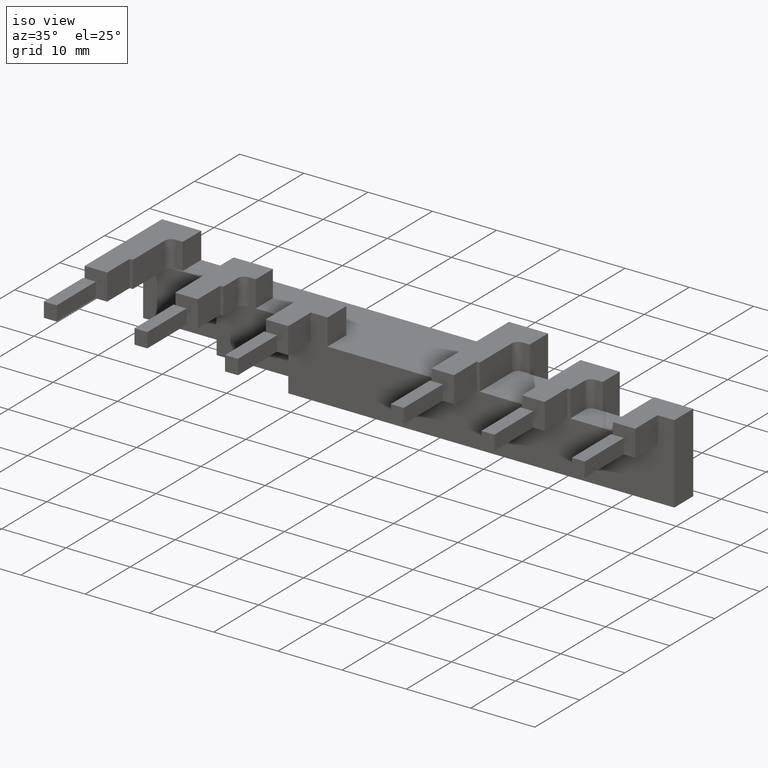
[diagram: clean part render]
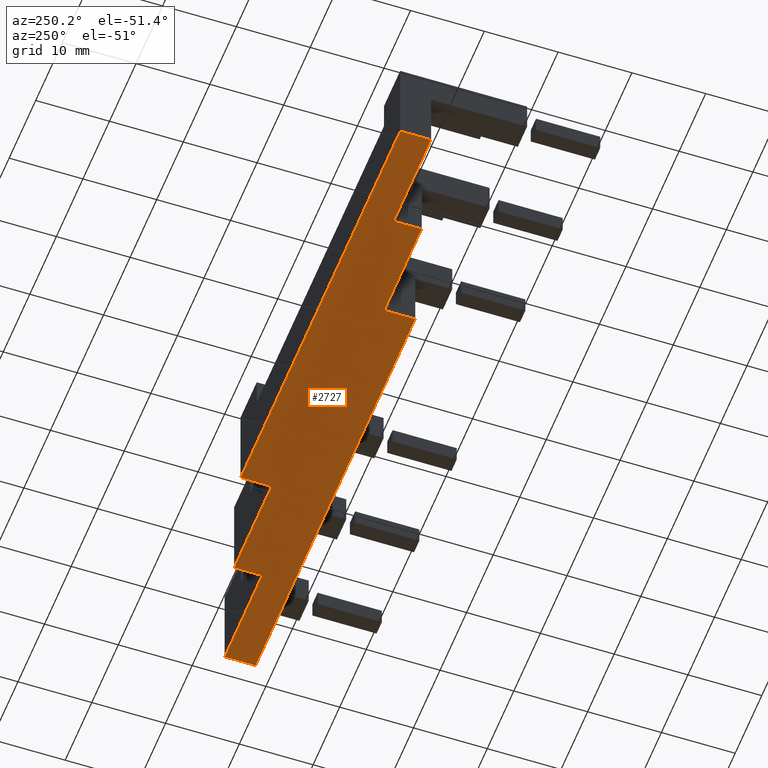
[diagram: tour spotlight — one face highlighted and labeled with its STEP entity id]
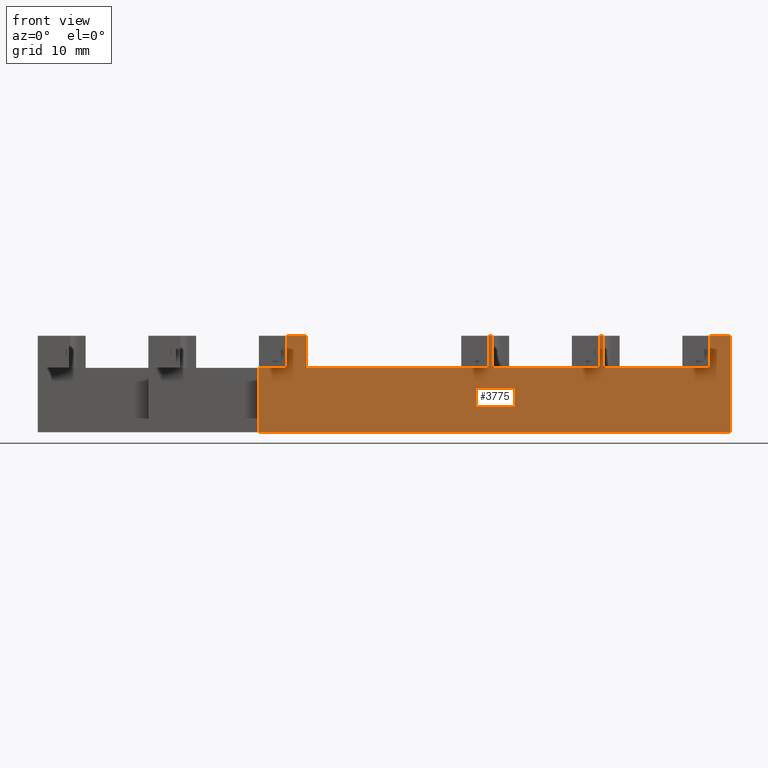
[diagram: tour spotlight — one face highlighted and labeled with its STEP entity id]
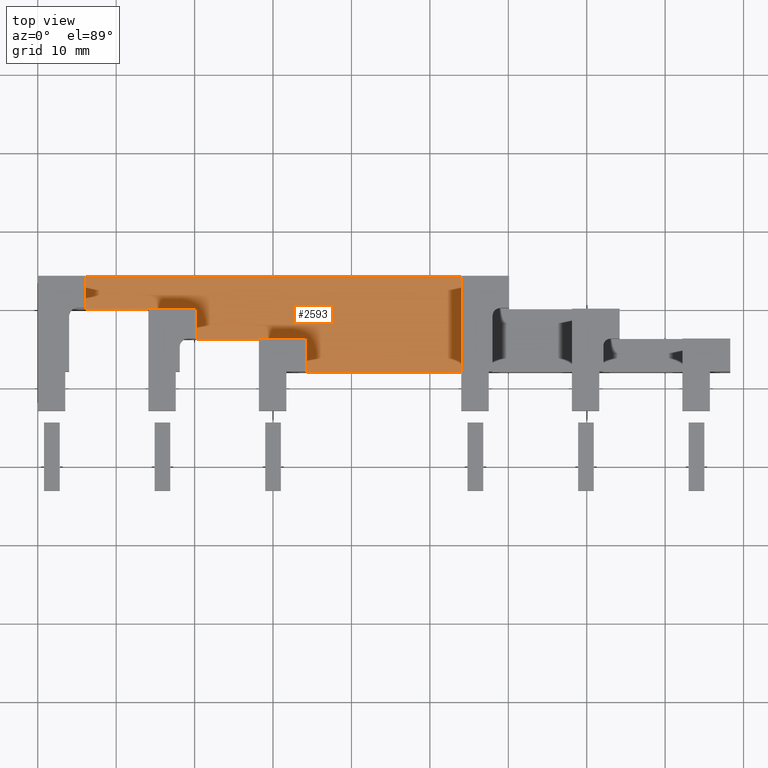
[diagram: tour spotlight — one face highlighted and labeled with its STEP entity id]
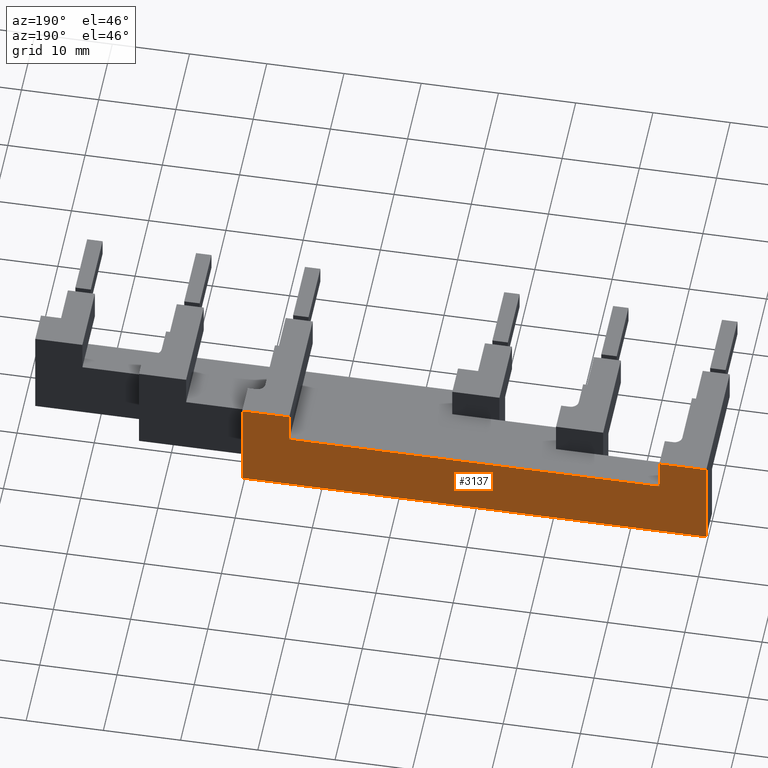
[diagram: tour spotlight — one face highlighted and labeled with its STEP entity id]
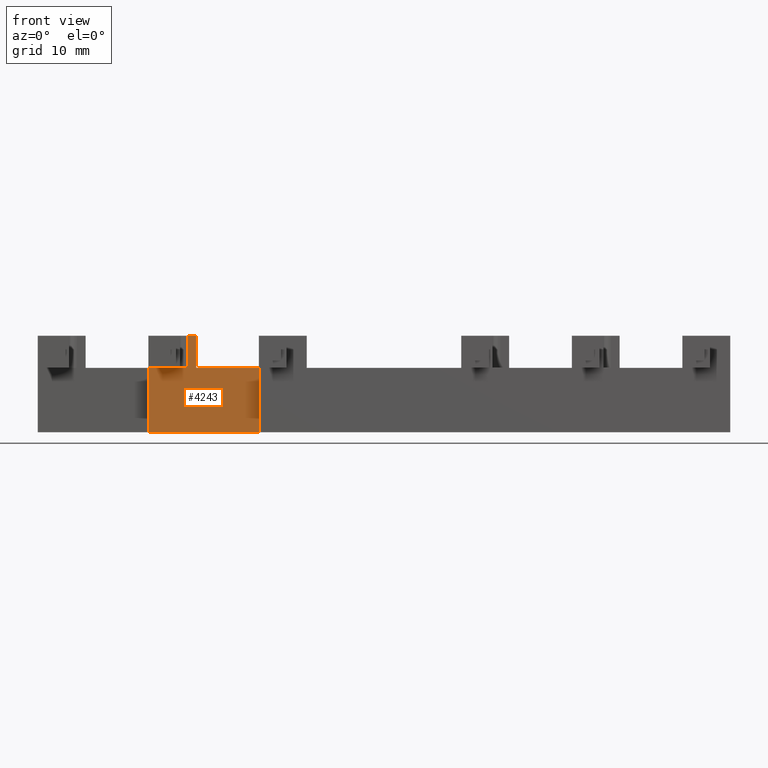
[diagram: tour spotlight — one face highlighted and labeled with its STEP entity id]
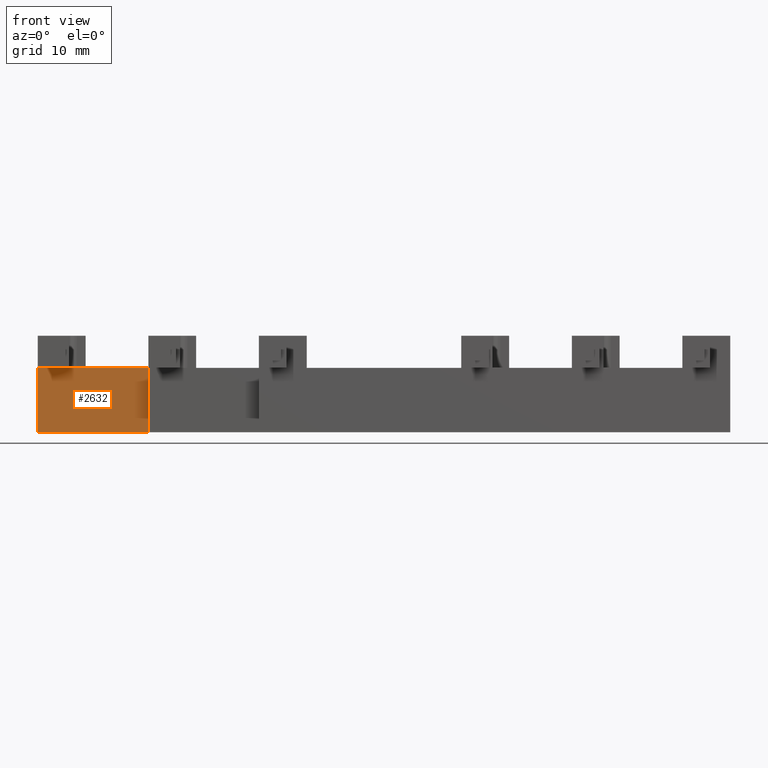
[diagram: tour spotlight — one face highlighted and labeled with its STEP entity id]
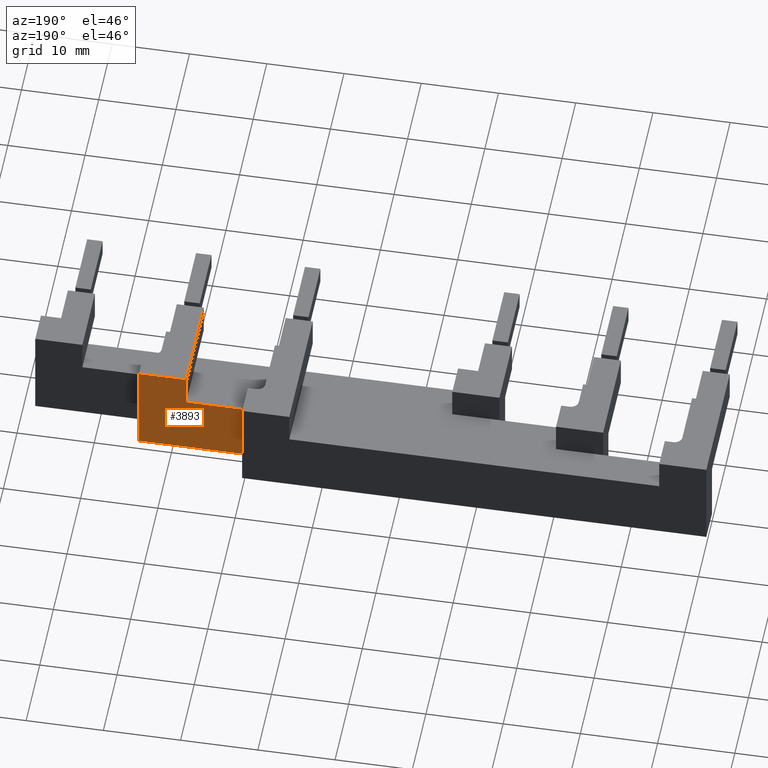
[diagram: tour spotlight — one face highlighted and labeled with its STEP entity id]
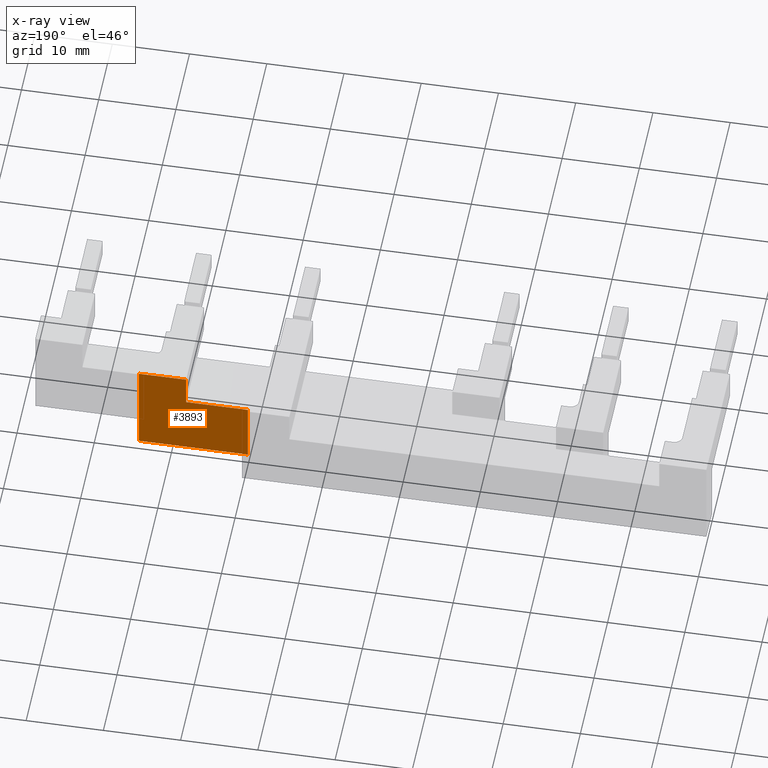
[diagram: x-ray of the same camera — body ghosted, this tour face saturated]
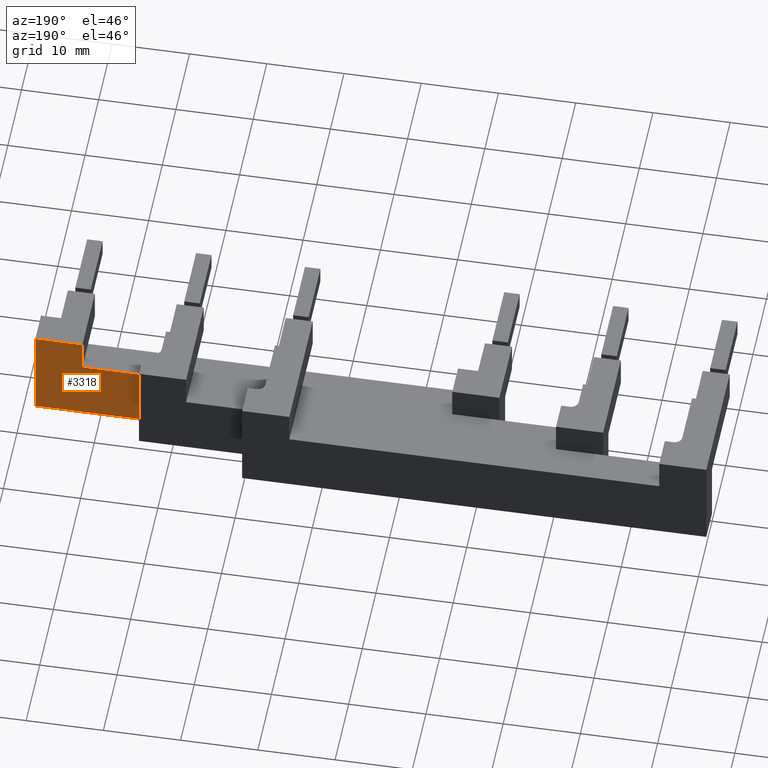
[diagram: tour spotlight — one face highlighted and labeled with its STEP entity id]
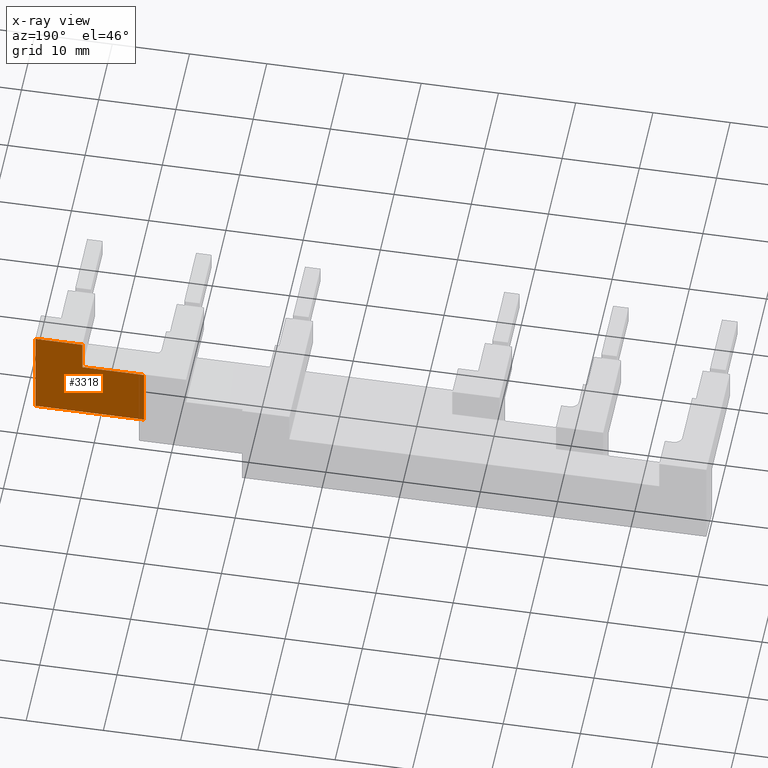
[diagram: x-ray of the same camera — body ghosted, this tour face saturated]
A machine part: a face-by-face anatomy tour. The part has 97 B-rep faces; the first image is the clean iso view, then the 8 largest visible faces are spotlighted one at a time (largest first), each with its STEP entity span.

Face 1 — auxiliary view, entity #2727. In plain terms, the highlighted planar face has unit normal (0, 0, 1).
Definition (entity closure, byte-faithful):
#2601=CARTESIAN_POINT('',(-1.776357E-015,-1.421085E-014,95.799999999992238));
#2602=VERTEX_POINT('',#2601);
#2609=CARTESIAN_POINT('',(14.099999999999682,2.842171E-013,95.79999999999194));
#2610=VERTEX_POINT('',#2609);
#2611=CARTESIAN_POINT('',(14.09999999999971,2.835540E-013,95.799999999991954));
#2612=DIRECTION('',(-1.0,0.0,0.0));
#2613=VECTOR('',#2612,14.09999999999971);
#2614=LINE('',#2611,#2613);
#2615=EDGE_CURVE('',#2610,#2602,#2614,.T.);
#2633=CARTESIAN_POINT('',(-154.95000000000024,2.10000000000062,95.799999999995563));
#2634=DIRECTION('',(0.0,0.0,1.0));
#2635=DIRECTION('',(1.0,0.0,0.0));
#2636=AXIS2_PLACEMENT_3D('',#2633,#2634,#2635);
#2637=PLANE('',#2636);
#2638=ORIENTED_EDGE('',*,*,#2615,.T.);
#2639=CARTESIAN_POINT('',(-9.193903E-014,4.200000000007734,95.799999999992224));
#2640=VERTEX_POINT('',#2639);
#2641=CARTESIAN_POINT('',(-1.165734E-016,-2.842171E-014,95.799999999992224));
#2642=DIRECTION('',(0.0,1.0,0.0));
#2643=VECTOR('',#2642,4.200000000007763);
#2644=LINE('',#2641,#2643);
#2645=EDGE_CURVE('',#2602,#2640,#2644,.T.);
#2646=ORIENTED_EDGE('',*,*,#2645,.T.);
#2647=CARTESIAN_POINT('',(60.099999999999511,4.200000000008999,95.799999999990945));
#2648=VERTEX_POINT('',#2647);
#2649=CARTESIAN_POINT('',(-8.526513E-014,4.200000000007726,95.799999999992252));
#2650=DIRECTION('',(1.0,0.0,0.0));
#2651=VECTOR('',#2650,60.099999999999596);
#2652=LINE('',#2649,#2651);
#2653=EDGE_CURVE('',#2640,#2648,#2652,.T.);
#2654=ORIENTED_EDGE('',*,*,#2653,.T.);
#2655=CARTESIAN_POINT('',(60.099999999999596,-2.842171E-014,95.799999999990959));
#2656=VERTEX_POINT('',#2655);
#2657=CARTESIAN_POINT('',(60.099999999999525,4.200000000009,95.799999999990973));
#2658=DIRECTION('',(0.0,-1.0,0.0));
#2659=VECTOR('',#2658,4.200000000009014);
#2660=LINE('',#2657,#2659);
#2661=EDGE_CURVE('',#2648,#2656,#2660,.T.);
#2662=ORIENTED_EDGE('',*,*,#2661,.T.);
#2663=CARTESIAN_POINT('',(74.199999999999747,2.700062E-013,95.799999999990661));
#2664=VERTEX_POINT('',#2663);
#2665=CARTESIAN_POINT('',(60.099999999999596,-2.246506E-014,95.799999999990945));
#2666=DIRECTION('',(1.0,0.0,0.0));
#2667=VECTOR('',#2666,14.100000000000136);
#2668=LINE('',#2665,#2667);
#2669=EDGE_CURVE('',#2656,#2664,#2668,.T.);
#2670=ORIENTED_EDGE('',*,*,#2669,.T.);
#2671=CARTESIAN_POINT('',(74.199999999999775,-3.799999999998634,95.799999999990661));
#2672=VERTEX_POINT('',#2671);
#2673=CARTESIAN_POINT('',(74.199999999999719,2.846612E-013,95.799999999990661));
#2674=DIRECTION('',(0.0,-1.0,0.0));
#2675=VECTOR('',#2674,3.799999999998904);
#2676=LINE('',#2673,#2675);
#2677=EDGE_CURVE('',#2664,#2672,#2676,.T.);
#2678=ORIENTED_EDGE('',*,*,#2677,.T.);
#2679=CARTESIAN_POINT('',(88.299999999999727,-3.799999999998321,95.799999999990376));
#2680=VERTEX_POINT('',#2679);
#2681=CARTESIAN_POINT('',(74.19999999999979,-3.799999999998628,95.799999999990646));
#2682=DIRECTION('',(1.0,0.0,0.0));
#2683=VECTOR('',#2682,14.099999999999937);
#2684=LINE('',#2681,#2683);
#2685=EDGE_CURVE('',#2672,#2680,#2684,.T.);
#2686=ORIENTED_EDGE('',*,*,#2685,.T.);
#2687=CARTESIAN_POINT('',(88.299999999999827,-7.999999999990451,95.799999999990376));
#2688=VERTEX_POINT('',#2687);
#2689=CARTESIAN_POINT('',(88.299999999999727,-3.799999999998335,95.799999999990348));
#2690=DIRECTION('',(0.0,-1.0,0.0));
#2691=VECTOR('',#2690,4.199999999992118);
#2692=LINE('',#2689,#2691);
#2693=EDGE_CURVE('',#2680,#2688,#2692,.T.);
#2694=ORIENTED_EDGE('',*,*,#2693,.T.);
#2695=CARTESIAN_POINT('',(28.199999999999772,-7.999999999991703,95.799999999991655));
#2696=VERTEX_POINT('',#2695);
#2697=CARTESIAN_POINT('',(88.299999999999812,-7.999999999990448,95.799999999990362));
#2698=DIRECTION('',(-1.0,0.0,0.0));
#2699=VECTOR('',#2698,60.100000000000044);
#2700=LINE('',#2697,#2699);
#2701=EDGE_CURVE('',#2688,#2696,#2700,.T.);
#2702=ORIENTED_EDGE('',*,*,#2701,.T.);
#2703=CARTESIAN_POINT('',(28.199999999999669,-3.799999999998918,95.799999999991655));
#2704=VERTEX_POINT('',#2703);
#2705=CARTESIAN_POINT('',(28.199999999999761,-7.999999999991688,95.799999999991655));
#2706=DIRECTION('',(0.0,1.0,0.0));
#2707=VECTOR('',#2706,4.199999999992785);
#2708=LINE('',#2705,#2707);
#2709=EDGE_CURVE('',#2696,#2704,#2708,.T.);
#2710=ORIENTED_EDGE('',*,*,#2709,.T.);
#2711=CARTESIAN_POINT('',(14.099999999999763,-3.799999999999216,95.799999999991954));
#2712=VERTEX_POINT('',#2711);
#2713=CARTESIAN_POINT('',(28.199999999999704,-3.799999999998933,95.799999999991655));
#2714=DIRECTION('',(-1.0,0.0,0.0));
#2715=VECTOR('',#2714,14.099999999999937);
#2716=LINE('',#2713,#2715);
#2717=EDGE_CURVE('',#2704,#2712,#2716,.T.);
#2718=ORIENTED_EDGE('',*,*,#2717,.T.);
#2719=CARTESIAN_POINT('',(14.099999999999756,-3.799999999999216,95.79999999999194));
#2720=DIRECTION('',(0.0,1.0,0.0));
#2721=VECTOR('',#2720,3.799999999999487);
#2722=LINE('',#2719,#2721);
#2723=EDGE_CURVE('',#2712,#2610,#2722,.T.);
#2724=ORIENTED_EDGE('',*,*,#2723,.T.);
#2725=EDGE_LOOP('',(#2638,#2646,#2654,#2662,#2670,#2678,#2686,#2694,#2702,#2710,#2718,#2724));
#2726=FACE_OUTER_BOUND('',#2725,.T.);
#2727=ADVANCED_FACE('',(#2726),#2637,.F.);

Face 2 — front view, entity #3775. In plain terms, the highlighted planar face has unit normal (0, -1, 0).
Definition (entity closure, byte-faithful):
#2374=CARTESIAN_POINT('',(68.100000000000051,-7.999999999990878,103.99999999999079));
#2375=VERTEX_POINT('',#2374);
#2415=CARTESIAN_POINT('',(58.000000000000256,-7.999999999990907,103.99999999999099));
#2416=VERTEX_POINT('',#2415);
#2423=CARTESIAN_POINT('',(58.000000000000199,-7.999999999991076,103.99999999999102));
#2424=DIRECTION('',(1.0,0.0,0.0));
#2425=VECTOR('',#2424,10.099999999999795);
#2426=LINE('',#2423,#2425);
#2427=EDGE_CURVE('',#2416,#2375,#2426,.T.);
#2456=CARTESIAN_POINT('',(72.100000000000051,-7.999999999990836,103.99999999999069));
#2457=VERTEX_POINT('',#2456);
#2464=CARTESIAN_POINT('',(82.19999999999996,-7.999999999990566,103.99999999999048));
#2465=VERTEX_POINT('',#2464);
#2466=CARTESIAN_POINT('',(72.099999999999994,-7.999999999990779,103.99999999999071));
#2467=DIRECTION('',(1.0,0.0,0.0));
#2468=VECTOR('',#2467,10.099999999999909);
#2469=LINE('',#2466,#2468);
#2470=EDGE_CURVE('',#2457,#2465,#2469,.T.);
#2520=CARTESIAN_POINT('',(34.299999999999969,-7.999999999999462,103.99999999999153));
#2521=VERTEX_POINT('',#2520);
#2528=CARTESIAN_POINT('',(54.000000000000192,-7.999999999991177,103.9999999999911));
#2529=VERTEX_POINT('',#2528);
#2530=CARTESIAN_POINT('',(34.299999999999926,-7.999999999991573,103.99999999999153));
#2531=DIRECTION('',(1.0,0.0,0.0));
#2532=VECTOR('',#2531,19.700000000000216);
#2533=LINE('',#2530,#2532);
#2534=EDGE_CURVE('',#2521,#2529,#2533,.T.);
#2687=CARTESIAN_POINT('',(88.299999999999827,-7.999999999990451,95.799999999990376));
#2688=VERTEX_POINT('',#2687);
#2695=CARTESIAN_POINT('',(28.199999999999772,-7.999999999991703,95.799999999991655));
#2696=VERTEX_POINT('',#2695);
#2697=CARTESIAN_POINT('',(88.299999999999812,-7.999999999990448,95.799999999990362));
#2698=DIRECTION('',(-1.0,0.0,0.0));
#2699=VECTOR('',#2698,60.100000000000044);
#2700=LINE('',#2697,#2699);
#2701=EDGE_CURVE('',#2688,#2696,#2700,.T.);
#3014=CARTESIAN_POINT('',(57.500000000000348,-7.999999999991148,108.099999999991));
#3015=VERTEX_POINT('',#3014);
#3032=CARTESIAN_POINT('',(57.500000000000256,-7.999999999991148,103.99999999999102));
#3033=VERTEX_POINT('',#3032);
#3040=CARTESIAN_POINT('',(57.500000000000256,-7.999999999991148,103.99999999999102));
#3041=DIRECTION('',(0.0,0.0,1.0));
#3042=VECTOR('',#3041,4.099999999999994);
#3043=LINE('',#3040,#3042);
#3044=EDGE_CURVE('',#3033,#3015,#3043,.T.);
#3223=CARTESIAN_POINT('',(58.000000000000341,-7.999999999990907,108.099999999991));
#3224=VERTEX_POINT('',#3223);
#3231=CARTESIAN_POINT('',(58.000000000000256,-7.999999999990907,103.99999999999099));
#3232=DIRECTION('',(0.0,0.0,1.0));
#3233=VECTOR('',#3232,4.099999999999994);
#3234=LINE('',#3231,#3233);
#3235=EDGE_CURVE('',#2416,#3224,#3234,.T.);
#3247=CARTESIAN_POINT('',(58.000000000000348,-7.99999999999091,108.09999999999098));
#3248=DIRECTION('',(-1.0,-4.760636E-013,2.842171E-014));
#3249=VECTOR('',#3248,0.5);
#3250=LINE('',#3247,#3249);
#3251=EDGE_CURVE('',#3224,#3015,#3250,.T.);
#3269=CARTESIAN_POINT('',(54.000000000000185,-7.999999999991154,103.9999999999911));
#3270=DIRECTION('',(1.0,0.0,0.0));
#3271=VECTOR('',#3270,3.500000000000064);
#3272=LINE('',#3269,#3271);
#3273=EDGE_CURVE('',#2529,#3033,#3272,.T.);
#3324=CARTESIAN_POINT('',(88.300000000000097,-7.999999999998311,108.09999999999036));
#3325=VERTEX_POINT('',#3324);
#3332=CARTESIAN_POINT('',(88.300000000000068,-7.999999999990438,108.09999999999036));
#3333=DIRECTION('',(0.0,0.0,-1.0));
#3334=VECTOR('',#3333,12.300000000000011);
#3335=LINE('',#3332,#3334);
#3336=EDGE_CURVE('',#3325,#2688,#3335,.T.);
#3348=CARTESIAN_POINT('',(85.700000000000188,-7.999999999998382,108.09999999999043));
#3349=VERTEX_POINT('',#3348);
#3366=CARTESIAN_POINT('',(85.700000000000074,-7.999999999998382,103.99999999999041));
#3367=VERTEX_POINT('',#3366);
#3374=CARTESIAN_POINT('',(85.700000000000074,-7.999999999998382,103.99999999999041));
#3375=DIRECTION('',(0.0,0.0,1.0));
#3376=VECTOR('',#3375,4.100000000000009);
#3377=LINE('',#3374,#3376);
#3378=EDGE_CURVE('',#3367,#3349,#3377,.T.);
#3446=CARTESIAN_POINT('',(88.300000000000097,-7.999999999998311,108.09999999999036));
#3447=DIRECTION('',(-1.0,0.0,0.0));
#3448=VECTOR('',#3447,2.599999999999909);
#3449=LINE('',#3446,#3448);
#3450=EDGE_CURVE('',#3325,#3349,#3449,.T.);
#3461=CARTESIAN_POINT('',(82.199999999999946,-7.999999999990562,103.99999999999051));
#3462=DIRECTION('',(1.0,0.0,0.0));
#3463=VECTOR('',#3462,3.500000000000114);
#3464=LINE('',#3461,#3463);
#3465=EDGE_CURVE('',#2465,#3367,#3464,.T.);
#3509=CARTESIAN_POINT('',(34.300000000000068,-7.999999999999462,108.09999999999151));
#3510=VERTEX_POINT('',#3509);
#3517=CARTESIAN_POINT('',(34.299999999999969,-7.999999999999462,103.99999999999153));
#3518=DIRECTION('',(0.0,0.0,1.0));
#3519=VECTOR('',#3518,4.100000000000009);
#3520=LINE('',#3517,#3519);
#3521=EDGE_CURVE('',#2521,#3510,#3520,.T.);
#3533=CARTESIAN_POINT('',(31.700000000000138,-7.999999999999519,108.09999999999158));
#3534=VERTEX_POINT('',#3533);
#3551=CARTESIAN_POINT('',(31.700000000000053,-7.999999999999504,103.99999999999156));
#3552=VERTEX_POINT('',#3551);
#3559=CARTESIAN_POINT('',(31.700000000000053,-7.999999999999504,103.99999999999156));
#3560=DIRECTION('',(0.0,0.0,1.0));
#3561=VECTOR('',#3560,4.100000000000009);
#3562=LINE('',#3559,#3561);
#3563=EDGE_CURVE('',#3552,#3534,#3562,.T.);
#3618=CARTESIAN_POINT('',(28.199999999999935,-7.999999999991703,103.99999999999167));
#3619=VERTEX_POINT('',#3618);
#3620=CARTESIAN_POINT('',(28.199999999999946,-7.999999999991703,103.99999999999163));
#3621=DIRECTION('',(0.0,0.0,-1.0));
#3622=VECTOR('',#3621,8.199999999999989);
#3623=LINE('',#3620,#3622);
#3624=EDGE_CURVE('',#3619,#2696,#3623,.T.);
#3645=CARTESIAN_POINT('',(34.300000000000068,-7.999999999999462,108.09999999999151));
#3646=DIRECTION('',(-1.0,0.0,0.0));
#3647=VECTOR('',#3646,2.599999999999909);
#3648=LINE('',#3645,#3647);
#3649=EDGE_CURVE('',#3510,#3534,#3648,.T.);
#3660=CARTESIAN_POINT('',(28.199999999999946,-7.999999999991697,103.99999999999166));
#3661=DIRECTION('',(1.0,0.0,0.0));
#3662=VECTOR('',#3661,3.500000000000114);
#3663=LINE('',#3660,#3662);
#3664=EDGE_CURVE('',#3619,#3552,#3663,.T.);
#3709=CARTESIAN_POINT('',(72.100000000000151,-7.99999999999085,108.0999999999907));
#3710=VERTEX_POINT('',#3709);
#3717=CARTESIAN_POINT('',(72.100000000000051,-7.999999999990836,103.99999999999069));
#3718=DIRECTION('',(0.0,0.0,1.0));
#3719=VECTOR('',#3718,4.099999999999994);
#3720=LINE('',#3717,#3719);
#3721=EDGE_CURVE('',#2457,#3710,#3720,.T.);
#3728=CARTESIAN_POINT('',(72.100000000000051,-7.999999999990836,103.99999999999069));
#3729=DIRECTION('',(0.0,-1.0,0.0));
#3730=DIRECTION('',(0.0,0.0,-1.0));
#3731=AXIS2_PLACEMENT_3D('',#3728,#3729,#3730);
#3732=PLANE('',#3731);
#3733=CARTESIAN_POINT('',(71.600000000000378,-7.999999999990864,108.09999999999071));
#3734=VERTEX_POINT('',#3733);
#3735=CARTESIAN_POINT('',(72.100000000000151,-7.999999999990854,108.0999999999907));
#3736=DIRECTION('',(-1.0,0.0,0.0));
#3737=VECTOR('',#3736,0.499999999999773);
#3738=LINE('',#3735,#3737);
#3739=EDGE_CURVE('',#3710,#3734,#3738,.T.);
#3740=ORIENTED_EDGE('',*,*,#3739,.T.);
#3741=CARTESIAN_POINT('',(71.600000000000279,-7.999999999990864,103.99999999999075));
#3742=VERTEX_POINT('',#3741);
#3743=CARTESIAN_POINT('',(71.600000000000279,-7.999999999990864,103.99999999999075));
#3744=DIRECTION('',(0.0,0.0,1.0));
#3745=VECTOR('',#3744,4.099999999999994);
#3746=LINE('',#3743,#3745);
#3747=EDGE_CURVE('',#3742,#3734,#3746,.T.);
#3748=ORIENTED_EDGE('',*,*,#3747,.F.);
#3749=CARTESIAN_POINT('',(68.100000000000051,-7.999999999990864,103.99999999999081));
#3750=DIRECTION('',(1.0,0.0,0.0));
#3751=VECTOR('',#3750,3.500000000000227);
#3752=LINE('',#3749,#3751);
#3753=EDGE_CURVE('',#2375,#3742,#3752,.T.);
#3754=ORIENTED_EDGE('',*,*,#3753,.F.);
#3755=ORIENTED_EDGE('',*,*,#2427,.F.);
#3756=ORIENTED_EDGE('',*,*,#3235,.T.);
#3757=ORIENTED_EDGE('',*,*,#3251,.T.);
#3758=ORIENTED_EDGE('',*,*,#3044,.F.);
#3759=ORIENTED_EDGE('',*,*,#3273,.F.);
#3760=ORIENTED_EDGE('',*,*,#2534,.F.);
#3761=ORIENTED_EDGE('',*,*,#3521,.T.);
#3762=ORIENTED_EDGE('',*,*,#3649,.T.);
#3763=ORIENTED_EDGE('',*,*,#3563,.F.);
#3764=ORIENTED_EDGE('',*,*,#3664,.F.);
#3765=ORIENTED_EDGE('',*,*,#3624,.T.);
#3766=ORIENTED_EDGE('',*,*,#2701,.F.);
#3767=ORIENTED_EDGE('',*,*,#3336,.F.);
#3768=ORIENTED_EDGE('',*,*,#3450,.T.);
#3769=ORIENTED_EDGE('',*,*,#3378,.F.);
#3770=ORIENTED_EDGE('',*,*,#3465,.F.);
#3771=ORIENTED_EDGE('',*,*,#2470,.F.);
#3772=ORIENTED_EDGE('',*,*,#3721,.T.);
#3773=EDGE_LOOP('',(#3740,#3748,#3754,#3755,#3756,#3757,#3758,#3759,#3760,#3761,#3762,#3763,#3764,#3765,#3766,#3767,#3768,#3769,#3770,#3771,#3772));
#3774=FACE_OUTER_BOUND('',#3773,.T.);
#3775=ADVANCED_FACE('',(#3774),#3732,.T.);

Face 3 — top view, entity #2593. In plain terms, the highlighted planar face has unit normal (0, 0, 1).
Definition (entity closure, byte-faithful):
#2489=CARTESIAN_POINT('',(61.050000000000004,2.100000000005153,103.99999999999096));
#2490=DIRECTION('',(0.0,0.0,1.0));
#2491=DIRECTION('',(1.0,0.0,0.0));
#2492=AXIS2_PLACEMENT_3D('',#2489,#2490,#2491);
#2493=PLANE('',#2492);
#2494=CARTESIAN_POINT('',(20.199999999999463,-3.799999999999089,103.99999999999183));
#2495=VERTEX_POINT('',#2494);
#2496=CARTESIAN_POINT('',(20.199999999999836,6.394885E-013,103.99999999999181));
#2497=VERTEX_POINT('',#2496);
#2498=CARTESIAN_POINT('',(20.199999999999463,-3.799999999999089,103.99999999999183));
#2499=DIRECTION('',(0.0,1.0,0.0));
#2500=VECTOR('',#2499,3.799999999999728);
#2501=LINE('',#2498,#2500);
#2502=EDGE_CURVE('',#2495,#2497,#2501,.T.);
#2503=ORIENTED_EDGE('',*,*,#2502,.F.);
#2504=CARTESIAN_POINT('',(28.199999999999861,-3.799999999999572,103.99999999999167));
#2505=VERTEX_POINT('',#2504);
#2506=CARTESIAN_POINT('',(20.19999999999947,-3.799999999999092,103.99999999999184));
#2507=DIRECTION('',(1.0,0.0,0.0));
#2508=VECTOR('',#2507,8.000000000000384);
#2509=LINE('',#2506,#2508);
#2510=EDGE_CURVE('',#2495,#2505,#2509,.T.);
#2511=ORIENTED_EDGE('',*,*,#2510,.T.);
#2512=CARTESIAN_POINT('',(34.299999999999862,-3.799999999999458,103.99999999999153));
#2513=VERTEX_POINT('',#2512);
#2514=CARTESIAN_POINT('',(28.199999999999861,-3.799999999999572,103.99999999999167));
#2515=DIRECTION('',(1.0,0.0,0.0));
#2516=VECTOR('',#2515,6.100000000000023);
#2517=LINE('',#2514,#2516);
#2518=EDGE_CURVE('',#2505,#2513,#2517,.T.);
#2519=ORIENTED_EDGE('',*,*,#2518,.T.);
#2520=CARTESIAN_POINT('',(34.299999999999969,-7.999999999999462,103.99999999999153));
#2521=VERTEX_POINT('',#2520);
#2522=CARTESIAN_POINT('',(34.299999999999862,-3.799999999999458,103.99999999999153));
#2523=DIRECTION('',(0.0,-1.0,0.0));
#2524=VECTOR('',#2523,4.200000000000005);
#2525=LINE('',#2522,#2524);
#2526=EDGE_CURVE('',#2513,#2521,#2525,.T.);
#2527=ORIENTED_EDGE('',*,*,#2526,.T.);
#2528=CARTESIAN_POINT('',(54.000000000000192,-7.999999999991177,103.9999999999911));
#2529=VERTEX_POINT('',#2528);
#2530=CARTESIAN_POINT('',(34.299999999999926,-7.999999999991573,103.99999999999153));
#2531=DIRECTION('',(1.0,0.0,0.0));
#2532=VECTOR('',#2531,19.700000000000216);
#2533=LINE('',#2530,#2532);
#2534=EDGE_CURVE('',#2521,#2529,#2533,.T.);
#2535=ORIENTED_EDGE('',*,*,#2534,.T.);
#2536=CARTESIAN_POINT('',(54.000000000000121,4.200000000008886,103.9999999999911));
#2537=VERTEX_POINT('',#2536);
#2538=CARTESIAN_POINT('',(54.000000000000121,4.200000000008886,103.9999999999911));
#2539=DIRECTION('',(0.0,-1.0,0.0));
#2540=VECTOR('',#2539,12.200000000000049);
#2541=LINE('',#2538,#2540);
#2542=EDGE_CURVE('',#2537,#2529,#2541,.T.);
#2543=ORIENTED_EDGE('',*,*,#2542,.F.);
#2544=CARTESIAN_POINT('',(6.099999999999754,4.200000000007862,103.99999999999211));
#2545=VERTEX_POINT('',#2544);
#2546=CARTESIAN_POINT('',(54.000000000000114,4.200000000008894,103.99999999999109));
#2547=DIRECTION('',(-1.0,0.0,0.0));
#2548=VECTOR('',#2547,47.900000000000347);
#2549=LINE('',#2546,#2548);
#2550=EDGE_CURVE('',#2537,#2545,#2549,.T.);
#2551=ORIENTED_EDGE('',*,*,#2550,.T.);
#2552=CARTESIAN_POINT('',(6.099999999999853,0.099999999999568,103.99999999999213));
#2553=VERTEX_POINT('',#2552);
#2554=CARTESIAN_POINT('',(6.099999999999853,0.099999999999568,103.99999999999213));
#2555=DIRECTION('',(0.0,1.0,0.0));
#2556=VECTOR('',#2555,4.100000000008309);
#2557=LINE('',#2554,#2556);
#2558=EDGE_CURVE('',#2553,#2545,#2557,.T.);
#2559=ORIENTED_EDGE('',*,*,#2558,.F.);
#2560=CARTESIAN_POINT('',(5.000000000000058,0.09999999999954,103.99999999999216));
#2561=VERTEX_POINT('',#2560);
#2562=CARTESIAN_POINT('',(5.000000000000058,0.09999999999954,103.99999999999216));
#2563=DIRECTION('',(1.0,0.0,0.0));
#2564=VECTOR('',#2563,1.099999999999796);
#2565=LINE('',#2562,#2564);
#2566=EDGE_CURVE('',#2561,#2553,#2565,.T.);
#2567=ORIENTED_EDGE('',*,*,#2566,.F.);
#2568=CARTESIAN_POINT('',(4.564110105647121,8.526513E-014,103.99999999999216));
#2569=VERTEX_POINT('',#2568);
#2570=CARTESIAN_POINT('',(5.000000000000079,-0.900000000000461,103.99999999999216));
#2571=DIRECTION('',(-1.068686E-014,1.068686E-014,-1.0));
#2572=DIRECTION('',(-0.707106781186552,0.707106781186543,1.511351E-014));
#2573=AXIS2_PLACEMENT_3D('',#2570,#2571,#2572);
#2574=CIRCLE('',#2573,1.000000000000001);
#2575=EDGE_CURVE('',#2569,#2561,#2574,.T.);
#2576=ORIENTED_EDGE('',*,*,#2575,.F.);
#2577=CARTESIAN_POINT('',(14.099999999999852,2.700062E-013,103.99999999999196));
#2578=VERTEX_POINT('',#2577);
#2579=CARTESIAN_POINT('',(4.564110105647124,9.210475E-014,103.99999999999217));
#2580=DIRECTION('',(1.0,0.0,0.0));
#2581=VECTOR('',#2580,9.535889894352742);
#2582=LINE('',#2579,#2581);
#2583=EDGE_CURVE('',#2569,#2578,#2582,.T.);
#2584=ORIENTED_EDGE('',*,*,#2583,.T.);
#2585=CARTESIAN_POINT('',(20.199999999999836,6.394885E-013,103.99999999999181));
#2586=DIRECTION('',(-1.0,0.0,0.0));
#2587=VECTOR('',#2586,6.099999999999982);
#2588=LINE('',#2585,#2587);
#2589=EDGE_CURVE('',#2497,#2578,#2588,.T.);
#2590=ORIENTED_EDGE('',*,*,#2589,.F.);
#2591=EDGE_LOOP('',(#2503,#2511,#2519,#2527,#2535,#2543,#2551,#2559,#2567,#2576,#2584,#2590));
#2592=FACE_OUTER_BOUND('',#2591,.T.);
#2593=ADVANCED_FACE('',(#2592),#2493,.T.);

Face 4 — auxiliary view, entity #3137. In plain terms, the highlighted planar face has unit normal (0, 1, 0).
Definition (entity closure, byte-faithful):
#2536=CARTESIAN_POINT('',(54.000000000000121,4.200000000008886,103.9999999999911));
#2537=VERTEX_POINT('',#2536);
#2544=CARTESIAN_POINT('',(6.099999999999754,4.200000000007862,103.99999999999211));
#2545=VERTEX_POINT('',#2544);
#2546=CARTESIAN_POINT('',(54.000000000000114,4.200000000008894,103.99999999999109));
#2547=DIRECTION('',(-1.0,0.0,0.0));
#2548=VECTOR('',#2547,47.900000000000347);
#2549=LINE('',#2546,#2548);
#2550=EDGE_CURVE('',#2537,#2545,#2549,.T.);
#2639=CARTESIAN_POINT('',(-9.193903E-014,4.200000000007734,95.799999999992224));
#2640=VERTEX_POINT('',#2639);
#2647=CARTESIAN_POINT('',(60.099999999999511,4.200000000008999,95.799999999990945));
#2648=VERTEX_POINT('',#2647);
#2649=CARTESIAN_POINT('',(-8.526513E-014,4.200000000007726,95.799999999992252));
#2650=DIRECTION('',(1.0,0.0,0.0));
#2651=VECTOR('',#2650,60.099999999999596);
#2652=LINE('',#2649,#2651);
#2653=EDGE_CURVE('',#2640,#2648,#2652,.T.);
#2835=CARTESIAN_POINT('',(1.744997E-013,4.200000000007734,108.09999999999222));
#2836=VERTEX_POINT('',#2835);
#2843=CARTESIAN_POINT('',(-8.970748E-014,4.200000000007749,95.799999999992252));
#2844=DIRECTION('',(0.0,0.0,1.0));
#2845=VECTOR('',#2844,12.299999999999997);
#2846=LINE('',#2843,#2845);
#2847=EDGE_CURVE('',#2640,#2836,#2846,.T.);
#2866=CARTESIAN_POINT('',(6.099999999999845,4.200000000007862,108.09999999999209));
#2867=VERTEX_POINT('',#2866);
#2883=CARTESIAN_POINT('',(6.099999999999754,4.200000000007862,103.99999999999211));
#2884=DIRECTION('',(0.0,0.0,1.0));
#2885=VECTOR('',#2884,4.099999999999994);
#2886=LINE('',#2883,#2885);
#2887=EDGE_CURVE('',#2545,#2867,#2886,.T.);
#2982=CARTESIAN_POINT('',(1.758593E-013,4.200000000007749,108.09999999999222));
#2983=DIRECTION('',(1.0,0.0,0.0));
#2984=VECTOR('',#2983,6.099999999999669);
#2985=LINE('',#2982,#2984);
#2986=EDGE_CURVE('',#2836,#2867,#2985,.T.);
#3085=CARTESIAN_POINT('',(54.000000000000213,4.200000000008886,108.09999999999108));
#3086=VERTEX_POINT('',#3085);
#3093=CARTESIAN_POINT('',(54.000000000000121,4.200000000008886,103.9999999999911));
#3094=DIRECTION('',(0.0,0.0,1.0));
#3095=VECTOR('',#3094,4.099999999999994);
#3096=LINE('',#3093,#3095);
#3097=EDGE_CURVE('',#2537,#3086,#3096,.T.);
#3110=CARTESIAN_POINT('',(54.000000000000121,4.200000000008886,103.9999999999911));
#3111=DIRECTION('',(0.0,1.0,0.0));
#3112=DIRECTION('',(0.0,0.0,1.0));
#3113=AXIS2_PLACEMENT_3D('',#3110,#3111,#3112);
#3114=PLANE('',#3113);
#3115=CARTESIAN_POINT('',(60.099999999999874,4.200000000008985,108.09999999999098));
#3116=VERTEX_POINT('',#3115);
#3117=CARTESIAN_POINT('',(54.000000000000192,4.200000000008871,108.09999999999111));
#3118=DIRECTION('',(1.0,0.0,0.0));
#3119=VECTOR('',#3118,6.099999999999682);
#3120=LINE('',#3117,#3119);
#3121=EDGE_CURVE('',#3086,#3116,#3120,.T.);
#3122=ORIENTED_EDGE('',*,*,#3121,.T.);
#3123=CARTESIAN_POINT('',(60.099999999999604,4.200000000008999,95.799999999990959));
#3124=DIRECTION('',(0.0,0.0,1.0));
#3125=VECTOR('',#3124,12.299999999999997);
#3126=LINE('',#3123,#3125);
#3127=EDGE_CURVE('',#2648,#3116,#3126,.T.);
#3128=ORIENTED_EDGE('',*,*,#3127,.F.);
#3129=ORIENTED_EDGE('',*,*,#2653,.F.);
#3130=ORIENTED_EDGE('',*,*,#2847,.T.);
#3131=ORIENTED_EDGE('',*,*,#2986,.T.);
#3132=ORIENTED_EDGE('',*,*,#2887,.F.);
#3133=ORIENTED_EDGE('',*,*,#2550,.F.);
#3134=ORIENTED_EDGE('',*,*,#3097,.T.);
#3135=EDGE_LOOP('',(#3122,#3128,#3129,#3130,#3131,#3132,#3133,#3134));
#3136=FACE_OUTER_BOUND('',#3135,.T.);
#3137=ADVANCED_FACE('',(#3136),#3114,.T.);

Face 5 — front view, entity #4243. In plain terms, the highlighted planar face has unit normal (0, -1, 0).
Definition (entity closure, byte-faithful):
#2494=CARTESIAN_POINT('',(20.199999999999463,-3.799999999999089,103.99999999999183));
#2495=VERTEX_POINT('',#2494);
#2504=CARTESIAN_POINT('',(28.199999999999861,-3.799999999999572,103.99999999999167));
#2505=VERTEX_POINT('',#2504);
#2506=CARTESIAN_POINT('',(20.19999999999947,-3.799999999999092,103.99999999999184));
#2507=DIRECTION('',(1.0,0.0,0.0));
#2508=VECTOR('',#2507,8.000000000000384);
#2509=LINE('',#2506,#2508);
#2510=EDGE_CURVE('',#2495,#2505,#2509,.T.);
#2703=CARTESIAN_POINT('',(28.199999999999669,-3.799999999998918,95.799999999991655));
#2704=VERTEX_POINT('',#2703);
#2711=CARTESIAN_POINT('',(14.099999999999763,-3.799999999999216,95.799999999991954));
#2712=VERTEX_POINT('',#2711);
#2713=CARTESIAN_POINT('',(28.199999999999704,-3.799999999998933,95.799999999991655));
#2714=DIRECTION('',(-1.0,0.0,0.0));
#2715=VECTOR('',#2714,14.099999999999937);
#2716=LINE('',#2713,#2715);
#2717=EDGE_CURVE('',#2704,#2712,#2716,.T.);
#3611=CARTESIAN_POINT('',(28.199999999999861,-3.799999999998918,103.99999999999164));
#3612=DIRECTION('',(0.0,0.0,-1.0));
#3613=VECTOR('',#3612,8.200000000000003);
#3614=LINE('',#3611,#3613);
#3615=EDGE_CURVE('',#2505,#2704,#3614,.T.);
#3970=CARTESIAN_POINT('',(19.100000000000033,-3.799999999999131,108.09999999999184));
#3971=VERTEX_POINT('',#3970);
#3989=CARTESIAN_POINT('',(19.099999999999945,-3.799999999999117,103.99999999999187));
#3990=VERTEX_POINT('',#3989);
#3998=CARTESIAN_POINT('',(19.099999999999945,-3.799999999999117,103.99999999999187));
#3999=DIRECTION('',(0.0,0.0,1.0));
#4000=VECTOR('',#3999,4.099999999999994);
#4001=LINE('',#3998,#4000);
#4002=EDGE_CURVE('',#3990,#3971,#4001,.T.);
#4152=CARTESIAN_POINT('',(14.099999999999937,-3.799999999999216,103.99999999999196));
#4153=VERTEX_POINT('',#4152);
#4154=CARTESIAN_POINT('',(14.099999999999939,-3.799999999999216,103.99999999999197));
#4155=DIRECTION('',(0.0,0.0,-1.0));
#4156=VECTOR('',#4155,8.200000000000003);
#4157=LINE('',#4154,#4156);
#4158=EDGE_CURVE('',#4153,#2712,#4157,.T.);
#4199=CARTESIAN_POINT('',(20.199999999999562,-3.799999999999089,108.09999999999181));
#4200=VERTEX_POINT('',#4199);
#4207=CARTESIAN_POINT('',(20.199999999999463,-3.799999999999089,103.99999999999183));
#4208=DIRECTION('',(0.0,0.0,1.0));
#4209=VECTOR('',#4208,4.099999999999994);
#4210=LINE('',#4207,#4209);
#4211=EDGE_CURVE('',#2495,#4200,#4210,.T.);
#4218=CARTESIAN_POINT('',(20.199999999999463,-3.799999999999089,103.99999999999183));
#4219=DIRECTION('',(0.0,-1.0,0.0));
#4220=DIRECTION('',(0.0,0.0,-1.0));
#4221=AXIS2_PLACEMENT_3D('',#4218,#4219,#4220);
#4222=PLANE('',#4221);
#4223=CARTESIAN_POINT('',(20.199999999999559,-3.799999999999101,108.09999999999181));
#4224=DIRECTION('',(-1.0,0.0,0.0));
#4225=VECTOR('',#4224,1.099999999999525);
#4226=LINE('',#4223,#4225);
#4227=EDGE_CURVE('',#4200,#3971,#4226,.T.);
#4228=ORIENTED_EDGE('',*,*,#4227,.T.);
#4229=ORIENTED_EDGE('',*,*,#4002,.F.);
#4230=CARTESIAN_POINT('',(14.099999999999939,-3.799999999999217,103.99999999999197));
#4231=DIRECTION('',(1.0,0.0,0.0));
#4232=VECTOR('',#4231,5.000000000000002);
#4233=LINE('',#4230,#4232);
#4234=EDGE_CURVE('',#4153,#3990,#4233,.T.);
#4235=ORIENTED_EDGE('',*,*,#4234,.F.);
#4236=ORIENTED_EDGE('',*,*,#4158,.T.);
#4237=ORIENTED_EDGE('',*,*,#2717,.F.);
#4238=ORIENTED_EDGE('',*,*,#3615,.F.);
#4239=ORIENTED_EDGE('',*,*,#2510,.F.);
#4240=ORIENTED_EDGE('',*,*,#4211,.T.);
#4241=EDGE_LOOP('',(#4228,#4229,#4235,#4236,#4237,#4238,#4239,#4240));
#4242=FACE_OUTER_BOUND('',#4241,.T.);
#4243=ADVANCED_FACE('',(#4242),#4222,.T.);

Face 6 — front view, entity #2632. In plain terms, the highlighted planar face has unit normal (0, 1, 0).
Definition (entity closure, byte-faithful):
#2568=CARTESIAN_POINT('',(4.564110105647121,8.526513E-014,103.99999999999216));
#2569=VERTEX_POINT('',#2568);
#2577=CARTESIAN_POINT('',(14.099999999999852,2.700062E-013,103.99999999999196));
#2578=VERTEX_POINT('',#2577);
#2579=CARTESIAN_POINT('',(4.564110105647124,9.210475E-014,103.99999999999217));
#2580=DIRECTION('',(1.0,0.0,0.0));
#2581=VECTOR('',#2580,9.535889894352742);
#2582=LINE('',#2579,#2581);
#2583=EDGE_CURVE('',#2569,#2578,#2582,.T.);
#2594=CARTESIAN_POINT('',(7.049999999999926,1.421085E-013,99.899999999992076));
#2595=DIRECTION('',(0.0,1.0,0.0));
#2596=DIRECTION('',(0.0,0.0,1.0));
#2597=AXIS2_PLACEMENT_3D('',#2594,#2595,#2596);
#2598=PLANE('',#2597);
#2599=CARTESIAN_POINT('',(1.728889E-013,-2.842171E-014,103.99999999999226));
#2600=VERTEX_POINT('',#2599);
#2601=CARTESIAN_POINT('',(-1.776357E-015,-1.421085E-014,95.799999999992238));
#2602=VERTEX_POINT('',#2601);
#2603=CARTESIAN_POINT('',(1.744376E-013,-1.401171E-014,103.99999999999226));
#2604=DIRECTION('',(0.0,0.0,-1.0));
#2605=VECTOR('',#2604,8.200000000000017);
#2606=LINE('',#2603,#2605);
#2607=EDGE_CURVE('',#2600,#2602,#2606,.T.);
#2608=ORIENTED_EDGE('',*,*,#2607,.T.);
#2609=CARTESIAN_POINT('',(14.099999999999682,2.842171E-013,95.79999999999194));
#2610=VERTEX_POINT('',#2609);
#2611=CARTESIAN_POINT('',(14.09999999999971,2.835540E-013,95.799999999991954));
#2612=DIRECTION('',(-1.0,0.0,0.0));
#2613=VECTOR('',#2612,14.09999999999971);
#2614=LINE('',#2611,#2613);
#2615=EDGE_CURVE('',#2610,#2602,#2614,.T.);
#2616=ORIENTED_EDGE('',*,*,#2615,.F.);
#2617=CARTESIAN_POINT('',(14.099999999999859,2.702054E-013,103.99999999999197));
#2618=DIRECTION('',(0.0,0.0,-1.0));
#2619=VECTOR('',#2618,8.200000000000003);
#2620=LINE('',#2617,#2619);
#2621=EDGE_CURVE('',#2578,#2610,#2620,.T.);
#2622=ORIENTED_EDGE('',*,*,#2621,.F.);
#2623=ORIENTED_EDGE('',*,*,#2583,.F.);
#2624=CARTESIAN_POINT('',(1.723066E-013,-1.394422E-014,103.99999999999226));
#2625=DIRECTION('',(1.0,0.0,0.0));
#2626=VECTOR('',#2625,4.564110105646948);
#2627=LINE('',#2624,#2626);
#2628=EDGE_CURVE('',#2600,#2569,#2627,.T.);
#2629=ORIENTED_EDGE('',*,*,#2628,.F.);
#2630=EDGE_LOOP('',(#2608,#2616,#2622,#2623,#2629));
#2631=FACE_OUTER_BOUND('',#2630,.T.);
#2632=ADVANCED_FACE('',(#2631),#2598,.F.);

Face 7 — auxiliary view, entity #3893. An x-ray twin of the same camera follows (body ghosted, this face saturated) — the face is partly hidden behind the body. In plain terms, the highlighted planar face has unit normal (0, 1, 0).
Definition (entity closure, byte-faithful):
#2372=CARTESIAN_POINT('',(68.099999999999895,1.406875E-012,103.99999999999076));
#2373=VERTEX_POINT('',#2372);
#2382=CARTESIAN_POINT('',(60.099999999999774,-1.421085E-014,103.99999999999096));
#2383=VERTEX_POINT('',#2382);
#2384=CARTESIAN_POINT('',(68.099999999999852,1.545469E-013,103.99999999999078));
#2385=DIRECTION('',(-1.0,0.0,0.0));
#2386=VECTOR('',#2385,8.000000000000114);
#2387=LINE('',#2384,#2386);
#2388=EDGE_CURVE('',#2373,#2383,#2387,.T.);
#2655=CARTESIAN_POINT('',(60.099999999999596,-2.842171E-014,95.799999999990959));
#2656=VERTEX_POINT('',#2655);
#2663=CARTESIAN_POINT('',(74.199999999999747,2.700062E-013,95.799999999990661));
#2664=VERTEX_POINT('',#2663);
#2665=CARTESIAN_POINT('',(60.099999999999596,-2.246506E-014,95.799999999990945));
#2666=DIRECTION('',(1.0,0.0,0.0));
#2667=VECTOR('',#2666,14.100000000000136);
#2668=LINE('',#2665,#2667);
#2669=EDGE_CURVE('',#2656,#2664,#2668,.T.);
#3158=CARTESIAN_POINT('',(60.099999999999774,-2.822256E-014,103.99999999999098));
#3159=DIRECTION('',(0.0,0.0,-1.0));
#3160=VECTOR('',#3159,8.200000000000003);
#3161=LINE('',#3158,#3160);
#3162=EDGE_CURVE('',#2383,#2656,#3161,.T.);
#3843=CARTESIAN_POINT('',(68.09999999999998,1.421085E-012,108.09999999999079));
#3844=VERTEX_POINT('',#3843);
#3851=CARTESIAN_POINT('',(68.099999999999895,1.406875E-012,103.99999999999076));
#3852=DIRECTION('',(0.0,0.0,1.0));
#3853=VECTOR('',#3852,4.099999999999994);
#3854=LINE('',#3851,#3853);
#3855=EDGE_CURVE('',#2373,#3844,#3854,.T.);
#3868=CARTESIAN_POINT('',(68.099999999999895,1.406875E-012,103.99999999999076));
#3869=DIRECTION('',(0.0,1.0,0.0));
#3870=DIRECTION('',(0.0,0.0,1.0));
#3871=AXIS2_PLACEMENT_3D('',#3868,#3869,#3870);
#3872=PLANE('',#3871);
#3873=CARTESIAN_POINT('',(74.19999999999996,1.776357E-012,108.09999999999064));
#3874=VERTEX_POINT('',#3873);
#3875=CARTESIAN_POINT('',(68.099999999999994,1.399546E-012,108.09999999999077));
#3876=DIRECTION('',(1.0,0.0,0.0));
#3877=VECTOR('',#3876,6.099999999999966);
#3878=LINE('',#3875,#3877);
#3879=EDGE_CURVE('',#3844,#3874,#3878,.T.);
#3880=ORIENTED_EDGE('',*,*,#3879,.T.);
#3881=CARTESIAN_POINT('',(74.199999999999676,1.775959E-012,95.799999999990675));
#3882=DIRECTION('',(0.0,0.0,1.0));
#3883=VECTOR('',#3882,12.299999999999997);
#3884=LINE('',#3881,#3883);
#3885=EDGE_CURVE('',#2664,#3874,#3884,.T.);
#3886=ORIENTED_EDGE('',*,*,#3885,.F.);
#3887=ORIENTED_EDGE('',*,*,#2669,.F.);
#3888=ORIENTED_EDGE('',*,*,#3162,.F.);
#3889=ORIENTED_EDGE('',*,*,#2388,.F.);
#3890=ORIENTED_EDGE('',*,*,#3855,.T.);
#3891=EDGE_LOOP('',(#3880,#3886,#3887,#3888,#3889,#3890));
#3892=FACE_OUTER_BOUND('',#3891,.T.);
#3893=ADVANCED_FACE('',(#3892),#3872,.T.);

Face 8 — auxiliary view, entity #3318. An x-ray twin of the same camera follows (body ghosted, this face saturated) — the face is partly hidden behind the body. In plain terms, the highlighted planar face has unit normal (0, 1, 0).
Definition (entity closure, byte-faithful):
#2439=CARTESIAN_POINT('',(74.199999999999477,-3.799999999997952,103.99999999999068));
#2440=VERTEX_POINT('',#2439);
#2472=CARTESIAN_POINT('',(82.199999999999875,-3.799999999998463,103.99999999999051));
#2473=VERTEX_POINT('',#2472);
#2480=CARTESIAN_POINT('',(82.199999999999903,-3.799999999998451,103.99999999999049));
#2481=DIRECTION('',(-1.0,0.0,0.0));
#2482=VECTOR('',#2481,8.000000000000398);
#2483=LINE('',#2480,#2482);
#2484=EDGE_CURVE('',#2473,#2440,#2483,.T.);
#2671=CARTESIAN_POINT('',(74.199999999999775,-3.799999999998634,95.799999999990661));
#2672=VERTEX_POINT('',#2671);
#2679=CARTESIAN_POINT('',(88.299999999999727,-3.799999999998321,95.799999999990376));
#2680=VERTEX_POINT('',#2679);
#2681=CARTESIAN_POINT('',(74.19999999999979,-3.799999999998628,95.799999999990646));
#2682=DIRECTION('',(1.0,0.0,0.0));
#2683=VECTOR('',#2682,14.099999999999937);
#2684=LINE('',#2681,#2683);
#2685=EDGE_CURVE('',#2672,#2680,#2684,.T.);
#3281=CARTESIAN_POINT('',(82.199999999999875,-3.799999999998463,103.99999999999051));
#3282=DIRECTION('',(0.0,1.0,0.0));
#3283=DIRECTION('',(1.0,0.0,0.0));
#3284=AXIS2_PLACEMENT_3D('',#3281,#3282,#3283);
#3285=PLANE('',#3284);
#3286=CARTESIAN_POINT('',(82.19999999999996,-3.799999999998463,108.0999999999905));
#3287=VERTEX_POINT('',#3286);
#3288=CARTESIAN_POINT('',(88.299999999999983,-3.799999999998307,108.09999999999036));
#3289=VERTEX_POINT('',#3288);
#3290=CARTESIAN_POINT('',(82.19999999999996,-3.799999999998463,108.0999999999905));
#3291=DIRECTION('',(1.0,0.0,0.0));
#3292=VECTOR('',#3291,6.100000000000023);
#3293=LINE('',#3290,#3292);
#3294=EDGE_CURVE('',#3287,#3289,#3293,.T.);
#3295=ORIENTED_EDGE('',*,*,#3294,.T.);
#3296=CARTESIAN_POINT('',(88.299999999999997,-3.79999999999832,108.09999999999036));
#3297=DIRECTION('',(0.0,0.0,-1.0));
#3298=VECTOR('',#3297,12.300000000000011);
#3299=LINE('',#3296,#3298);
#3300=EDGE_CURVE('',#3289,#2680,#3299,.T.);
#3301=ORIENTED_EDGE('',*,*,#3300,.T.);
#3302=ORIENTED_EDGE('',*,*,#2685,.F.);
#3303=CARTESIAN_POINT('',(74.199999999999989,-3.79999999999862,103.99999999999065));
#3304=DIRECTION('',(0.0,0.0,-1.0));
#3305=VECTOR('',#3304,8.200000000000003);
#3306=LINE('',#3303,#3305);
#3307=EDGE_CURVE('',#2440,#2672,#3306,.T.);
#3308=ORIENTED_EDGE('',*,*,#3307,.F.);
#3309=ORIENTED_EDGE('',*,*,#2484,.F.);
#3310=CARTESIAN_POINT('',(82.199999999999875,-3.799999999998463,103.99999999999051));
#3311=DIRECTION('',(0.0,0.0,1.0));
#3312=VECTOR('',#3311,4.100000000000009);
#3313=LINE('',#3310,#3312);
#3314=EDGE_CURVE('',#2473,#3287,#3313,.T.);
#3315=ORIENTED_EDGE('',*,*,#3314,.T.);
#3316=EDGE_LOOP('',(#3295,#3301,#3302,#3308,#3309,#3315));
#3317=FACE_OUTER_BOUND('',#3316,.T.);
#3318=ADVANCED_FACE('',(#3317),#3285,.T.);